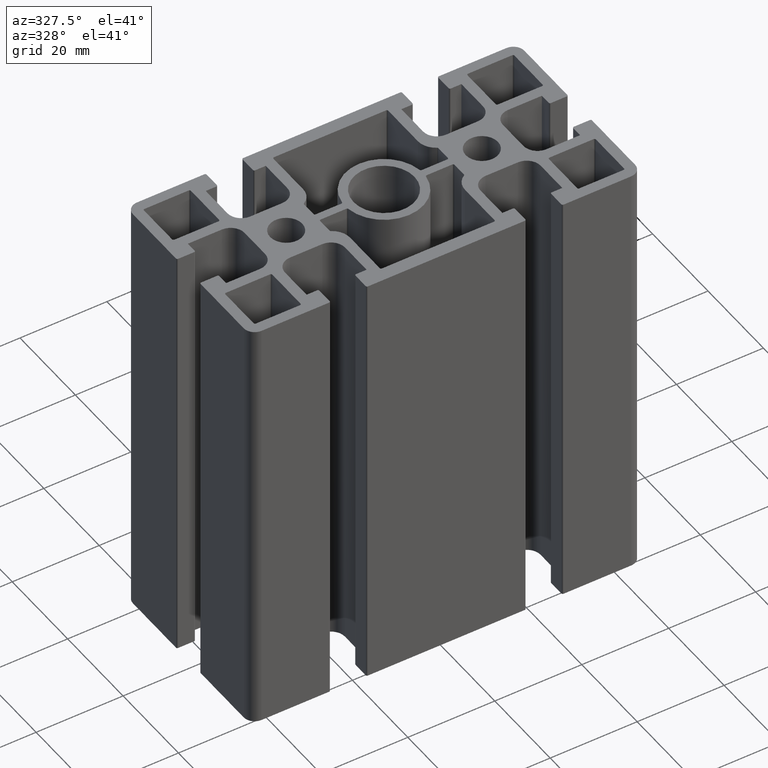
[diagram: clean part render]
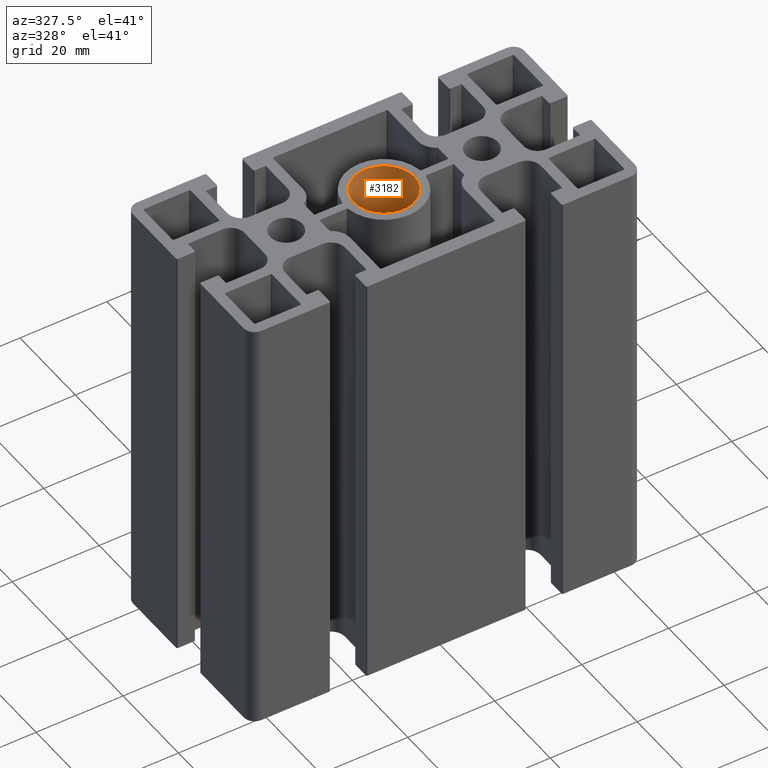
[diagram: same view with one face highlighted and labeled with its STEP entity id]
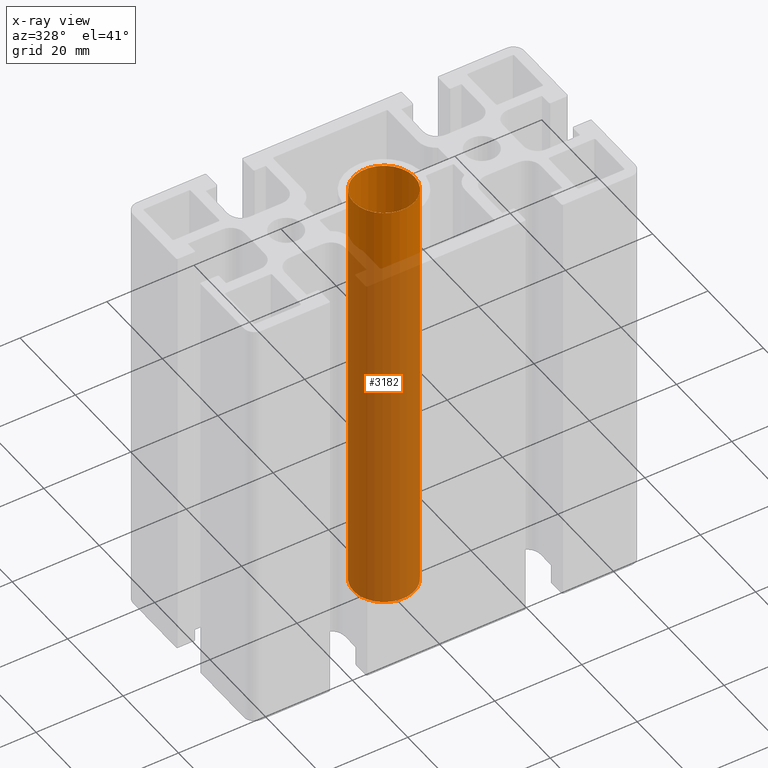
[diagram: x-ray of the same camera — body ghosted, the highlighted face saturated]
A machine part, auxiliary view. The second image highlights one B-rep face of the part: STEP entity #3182.
The next image is the same camera in x-ray: the body ghosted, the highlighted face saturated — about 80% of this face is hidden behind the body in this view.
In plain terms, the highlighted cylindrical surface (bore or boss wall) has radius 7 mm, axis along (0, 0, 1).
Its self-contained STEP definition (entity closure, byte-faithful):
#15=FACE_BOUND('',#322,.T.);
#156=FACE_OUTER_BOUND('',#321,.T.);
#321=EDGE_LOOP('',(#2237));
#322=EDGE_LOOP('',(#2238));
#1163=CIRCLE('',#3394,7.);
#1164=CIRCLE('',#3395,7.);
#1353=VERTEX_POINT('',#4838);
#1354=VERTEX_POINT('',#4840);
#1715=EDGE_CURVE('',#1353,#1353,#1163,.T.);
#1716=EDGE_CURVE('',#1354,#1354,#1164,.T.);
#2237=ORIENTED_EDGE('',*,*,#1715,.F.);
#2238=ORIENTED_EDGE('',*,*,#1716,.F.);
#3087=CYLINDRICAL_SURFACE('',#3393,7.);
#3182=ADVANCED_FACE('',(#156,#15),#3087,.F.);
#3393=AXIS2_PLACEMENT_3D('',#4837,#3866,#3867);
#3394=AXIS2_PLACEMENT_3D('',#4839,#3868,#3869);
#3395=AXIS2_PLACEMENT_3D('',#4841,#3870,#3871);
#3866=DIRECTION('center_axis',(0.,0.,1.));
#3867=DIRECTION('ref_axis',(-1.,0.,0.));
#3868=DIRECTION('center_axis',(0.,0.,-1.));
#3869=DIRECTION('ref_axis',(-1.,0.,0.));
#3870=DIRECTION('center_axis',(0.,0.,1.));
#3871=DIRECTION('ref_axis',(-1.,0.,0.));
#4837=CARTESIAN_POINT('Origin',(0.,0.,0.));
#4838=CARTESIAN_POINT('',(7.,8.57252759403147E-16,100.));
#4839=CARTESIAN_POINT('Origin',(0.,0.,100.));
#4840=CARTESIAN_POINT('',(7.,8.57252759403147E-16,0.));
#4841=CARTESIAN_POINT('Origin',(0.,0.,0.));